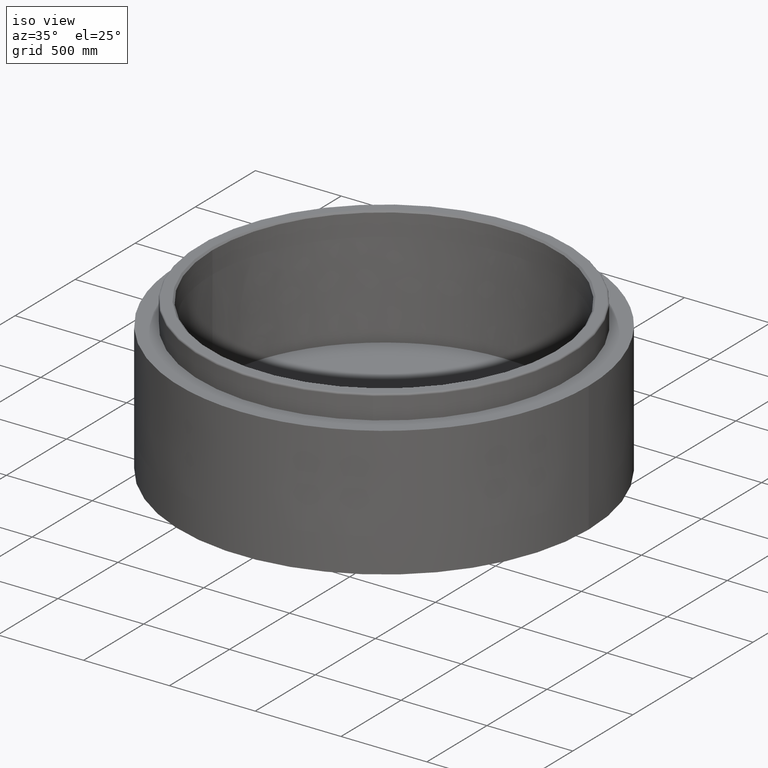
[diagram: clean part render]
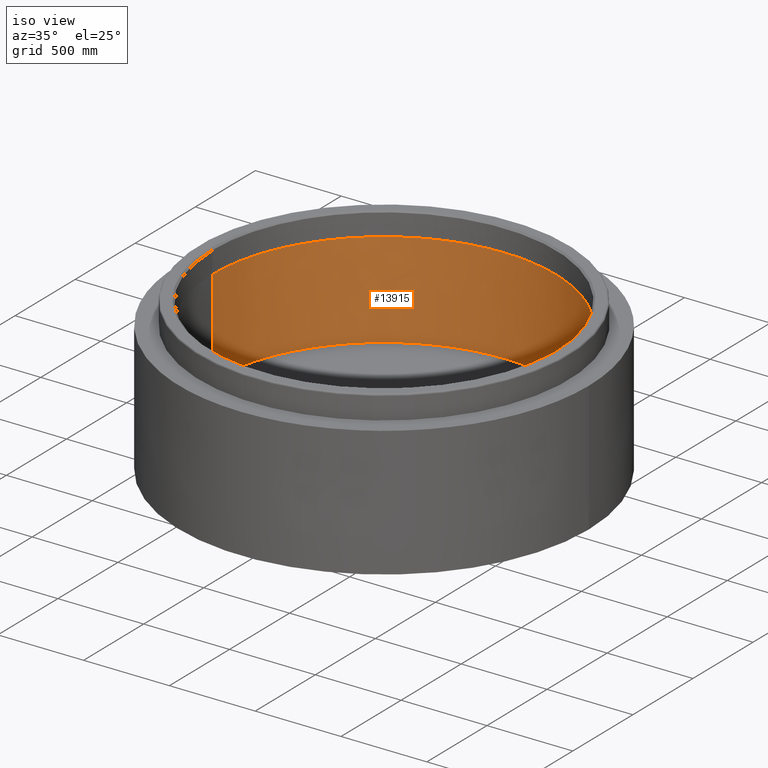
[diagram: same view with one face highlighted and labeled with its STEP entity id]
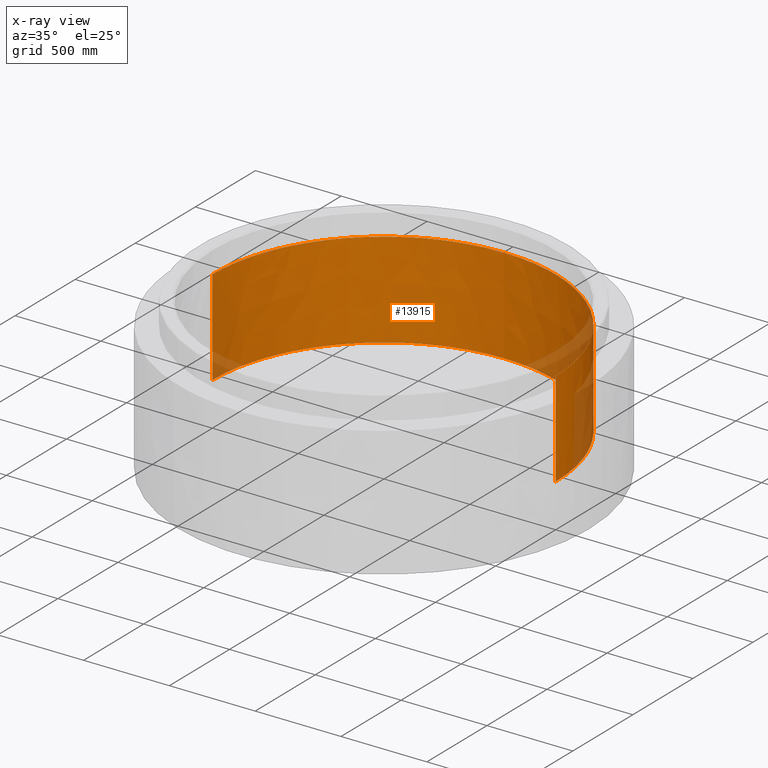
[diagram: x-ray of the same camera — body ghosted, the highlighted face saturated]
A machine part, iso view. The second image highlights one B-rep face of the part: STEP entity #13915.
The next image is the same camera in x-ray: the body ghosted, the highlighted face saturated — about 8% of this face is hidden behind the body in this view.
In plain terms, the highlighted face is a freeform B-spline surface patch.
Its self-contained STEP definition (entity closure, byte-faithful):
#67 = AXIS2_PLACEMENT_3D ( 'NONE', #11105, #19419, #21438 ) ;
#194 = AXIS2_PLACEMENT_3D ( 'NONE', #8429, #16869, #20134 ) ;
#337 = B_SPLINE_CURVE_WITH_KNOTS ( 'NONE', 3,
 ( #10201, #8392, #20204, #22109 ),
 .UNSPECIFIED., .F., .F.,
 ( 4, 4 ),
 ( 0.0000000000000000000, 1.000000000000000000 ),
 .UNSPECIFIED. ) ;
#352 = CARTESIAN_POINT ( 'NONE',  ( 1000.000000000000000, 0.0000000000000000000, 0.0000000000000000000 ) ) ;
#353 = CARTESIAN_POINT ( 'NONE',  ( 0.0000000000000000000, 0.0000000000000000000, 0.0000000000000000000 ) ) ;
#448 = DIRECTION ( 'NONE',  ( 1.000000000000000000, 0.0000000000000000000, 0.0000000000000000000 ) ) ;
#453 = CIRCLE ( 'NONE', #67, 1000.000000000000000 ) ;
#688 = DIRECTION ( 'NONE',  ( 0.0000000000000000000, 0.0000000000000000000, 1.000000000000000000 ) ) ;
#712 = ORIENTED_EDGE ( 'NONE', *, *, #3984, .T. ) ;
#764 = DIRECTION ( 'NONE',  ( 1.000000000000000000, 0.0000000000000000000, 0.0000000000000000000 ) ) ;
#826 = CARTESIAN_POINT ( 'NONE',  ( 997.1199358540546882, -79.22253806164650314, 185.6666666666667140 ) ) ;
#850 = ORIENTED_EDGE ( 'NONE', *, *, #16654, .F. ) ;
#920 = CARTESIAN_POINT ( 'NONE',  ( 0.0000000000000000000, 0.0000000000000000000, 557.0000000000000000 ) ) ;
#934 = AXIS2_PLACEMENT_3D ( 'NONE', #19990, #14412, #21271 ) ;
#1043 = CARTESIAN_POINT ( 'NONE',  ( 997.1199358540545745, -79.22253806164650314, 0.0000000000000000000 ) ) ;
#1051 = CARTESIAN_POINT ( 'NONE',  ( 0.0000000000000000000, 0.0000000000000000000, 557.0000000000000000 ) ) ;
#1151 = CARTESIAN_POINT ( 'NONE',  ( 519.5757101685526322, -894.6378522045422415, 185.6666666666667140 ) ) ;
#1171 = AXIS2_PLACEMENT_3D ( 'NONE', #9299, #9183, #764 ) ;
#1229 = DIRECTION ( 'NONE',  ( 1.000000000000000000, 0.0000000000000000000, 0.0000000000000000000 ) ) ;
#1234 = CARTESIAN_POINT ( 'NONE',  ( -281.8523488860598150, 959.4578104344046778, 557.0000000000000000 ) ) ;
#1248 = B_SPLINE_SURFACE_WITH_KNOTS ( 'NONE', 3, 3, ( 
 ( #11483, #20018, #11376, #4406 ),
 ( #2517, #11264, #9582, #4627 ),
 ( #2626, #19693, #19580, #21383 ),
 ( #16430, #16210, #826, #1043 ),
 ( #16646, #21594, #17906, #7880 ),
 ( #18231, #7663, #6199, #19908 ),
 ( #2846, #9690, #16539, #18339 ),
 ( #2955, #21273, #1151, #14525 ),
 ( #9470, #1259, #5982, #7989 ),
 ( #14849, #8096, #12724, #4296 ),
 ( #4191, #11157, #18014, #8307 ),
 ( #18443, #3495, #11795, #18766 ),
 ( #4730, #1804, #1362, #20561 ),
 ( #20449, #14954, #4834, #6842 ),
 ( #21809, #3271, #5051, #20228 ),
 ( #18880, #21912, #3055, #6516 ),
 ( #10010, #20339, #15161, #22132 ),
 ( #18659, #10225, #22023, #10341 ),
 ( #6413, #6625, #16967, #8417 ),
 ( #17086, #4945, #11584, #12012 ),
 ( #13702, #10116, #15271, #13374 ),
 ( #13481, #1575, #11691, #13270 ),
 ( #11901, #6733, #13592, #17199 ),
 ( #3379, #1689, #20122, #8529 ),
 ( #15382, #9902, #22243, #5163 ),
 ( #16752, #8199, #15054, #18552 ) ),
 .UNSPECIFIED., .T., .F., .F.,
 ( 4, 1, 1, 1, 1, 2, 2, 2, 2, 2, 2, 2, 1, 1, 1, 1, 4 ),
 ( 4, 4 ),
 ( 0.0000000000000000000, 0.006250000000000088818, 0.01249999999999995559, 0.01875000000000004441, 0.02499999999999991118, 0.1250000000000000000, 0.2500000000000000000, 0.3750000000000000000, 0.5000000000000000000, 0.6250000000000000000, 0.7500000000000000000, 0.8750000000000000000, 0.9749999999999999778, 0.9812499999999999556, 0.9875000000000000444, 0.9937500000000000222, 1.000000000000000000 ),
 ( 0.0000000000000000000, 1.000000000000000000 ),
 .UNSPECIFIED. ) ;
#1259 = CARTESIAN_POINT ( 'NONE',  ( 265.2089839999998162, -1000.000000000000455, 371.3333333333334849 ) ) ;
#1270 = CIRCLE ( 'NONE', #19573, 1000.000000000000000 ) ;
#1362 = CARTESIAN_POINT ( 'NONE',  ( -1000.000000000000455, -265.2089839999995888, 185.6666666666667140 ) ) ;
#1575 = CARTESIAN_POINT ( 'NONE',  ( 993.2210400670139734, 118.4713158489984295, 371.3333333333333144 ) ) ;
#1583 = CARTESIAN_POINT ( 'NONE',  ( 1000.000000000000000, -3.634245682171410863E-13, 371.3333333333334849 ) ) ;
#1662 = ORIENTED_EDGE ( 'NONE', *, *, #18858, .F. ) ;
#1689 = CARTESIAN_POINT ( 'NONE',  ( 999.4731892610225259, 39.72713631084230457, 371.3333333333334849 ) ) ;
#1717 = CARTESIAN_POINT ( 'NONE',  ( 959.4578104416010547, 281.8523488617672683, 556.9999999999998863 ) ) ;
#1755 = VERTEX_POINT ( 'NONE', #3566 ) ;
#1804 = CARTESIAN_POINT ( 'NONE',  ( -1000.000000000000455, -265.2089839999995888, 371.3333333333334849 ) ) ;
#1812 = DIRECTION ( 'NONE',  ( 1.000000000000000000, 0.0000000000000000000, 0.0000000000000000000 ) ) ;
#1936 = ORIENTED_EDGE ( 'NONE', *, *, #8260, .T. ) ;
#1978 = ORIENTED_EDGE ( 'NONE', *, *, #4787, .T. ) ;
#1998 = CIRCLE ( 'NONE', #11670, 1000.000000000000000 ) ;
#2051 = ORIENTED_EDGE ( 'NONE', *, *, #10908, .F. ) ;
#2121 = ORIENTED_EDGE ( 'NONE', *, *, #6961, .T. ) ;
#2329 = ORIENTED_EDGE ( 'NONE', *, *, #13750, .F. ) ;
#2437 = VERTEX_POINT ( 'NONE', #8159 ) ;
#2485 = CARTESIAN_POINT ( 'NONE',  ( 0.0000000000000000000, 0.0000000000000000000, 0.0000000000000000000 ) ) ;
#2490 = CARTESIAN_POINT ( 'NONE',  ( 0.0000000000000000000, 0.0000000000000000000, 557.0000000000000000 ) ) ;
#2517 = CARTESIAN_POINT ( 'NONE',  ( 1000.000000000000000, -13.26044920000056848, 557.0000000000000000 ) ) ;
#2626 = CARTESIAN_POINT ( 'NONE',  ( 999.4731892610226396, -39.72713631084327091, 557.0000000000000000 ) ) ;
#2636 = EDGE_LOOP ( 'NONE', ( #20487, #9699, #18365, #7806, #1662, #16357, #21153, #850, #8897, #19619, #9619, #2329, #10817, #2051, #16892, #16128, #1936, #712, #4648, #7087, #10707, #16349, #5342, #19618, #1978, #2121 ) ) ;
#2677 = DIRECTION ( 'NONE',  ( 1.000000000000000000, 0.0000000000000000000, 0.0000000000000000000 ) ) ;
#2718 = DIRECTION ( 'NONE',  ( 0.0000000000000000000, 0.0000000000000000000, 1.000000000000000000 ) ) ;
#2731 = AXIS2_PLACEMENT_3D ( 'NONE', #9709, #16558, #14866 ) ;
#2788 = CARTESIAN_POINT ( 'NONE',  ( 0.0000000000000000000, 0.0000000000000000000, 557.0000000000000000 ) ) ;
#2846 = CARTESIAN_POINT ( 'NONE',  ( 857.1316380009430986, -557.0819243721521161, 556.9999999999998863 ) ) ;
#2934 = CIRCLE ( 'NONE', #15453, 1000.000000000000000 ) ;
#2955 = CARTESIAN_POINT ( 'NONE',  ( 519.5757101685526322, -894.6378522045422415, 557.0000000000000000 ) ) ;
#3055 = CARTESIAN_POINT ( 'NONE',  ( -519.5757101685527459, 894.6378522045423551, 185.6666666666667140 ) ) ;
#3271 = CARTESIAN_POINT ( 'NONE',  ( -894.6378522045419004, 519.5757101685532007, 371.3333333333334849 ) ) ;
#3272 = DIRECTION ( 'NONE',  ( 0.0000000000000000000, 0.0000000000000000000, 1.000000000000000000 ) ) ;
#3376 = DIRECTION ( 'NONE',  ( 0.0000000000000000000, 0.0000000000000000000, 1.000000000000000000 ) ) ;
#3379 = CARTESIAN_POINT ( 'NONE',  ( 999.4731892610226396, 39.72713631084230457, 557.0000000000000000 ) ) ;
#3438 = CIRCLE ( 'NONE', #17807, 1000.000000000000000 ) ;
#3469 = CARTESIAN_POINT ( 'NONE',  ( -959.4578124397139618, 281.8523494227334822, 557.0000000000000000 ) ) ;
#3495 = CARTESIAN_POINT ( 'NONE',  ( -894.6378522045423551, -519.5757101685524049, 371.3333333333334849 ) ) ;
#3566 = CARTESIAN_POINT ( 'NONE',  ( -959.4578016754024929, 281.8523462602058771, 0.0000000000000000000 ) ) ;
#3663 = CARTESIAN_POINT ( 'NONE',  ( -707.1067811865472095, 707.1067811865477779, 557.0000000000000000 ) ) ;
#3817 = CIRCLE ( 'NONE', #2731, 1000.000000000000000 ) ;
#3984 = EDGE_CURVE ( 'NONE', #20852, #18038, #6991, .T. ) ;
#4153 = AXIS2_PLACEMENT_3D ( 'NONE', #1051, #11165, #14641 ) ;
#4191 = CARTESIAN_POINT ( 'NONE',  ( -519.5757101685534280, -894.6378522045417867, 557.0000000000000000 ) ) ;
#4271 = DIRECTION ( 'NONE',  ( 1.000000000000000000, 0.0000000000000000000, 0.0000000000000000000 ) ) ;
#4296 = CARTESIAN_POINT ( 'NONE',  ( -265.2089840000007257, -1000.000000000000000, 0.0000000000000000000 ) ) ;
#4332 = VERTEX_POINT ( 'NONE', #13774 ) ;
#4387 = EDGE_CURVE ( 'NONE', #18038, #7130, #1270, .T. ) ;
#4396 = CARTESIAN_POINT ( 'NONE',  ( 281.8523462707589715, 959.4578016722422262, 0.0000000000000000000 ) ) ;
#4406 = CARTESIAN_POINT ( 'NONE',  ( 1000.000000000000000, -3.625572064791526827E-13, 0.0000000000000000000 ) ) ;
#4496 = CIRCLE ( 'NONE', #20637, 1000.000000000000000 ) ;
#4515 = CIRCLE ( 'NONE', #7374, 1000.000000000000000 ) ;
#4569 = CARTESIAN_POINT ( 'NONE',  ( 479.1394129846663077, 877.7388240747017107, 0.0000000000000000000 ) ) ;
#4600 = DIRECTION ( 'NONE',  ( 0.0000000000000000000, 0.0000000000000000000, 1.000000000000000000 ) ) ;
#4627 = CARTESIAN_POINT ( 'NONE',  ( 1000.000000000000000, -13.26044920000056848, 0.0000000000000000000 ) ) ;
#4648 = ORIENTED_EDGE ( 'NONE', *, *, #4387, .T. ) ;
#4701 = DIRECTION ( 'NONE',  ( 0.0000000000000000000, 0.0000000000000000000, 1.000000000000000000 ) ) ;
#4730 = CARTESIAN_POINT ( 'NONE',  ( -1000.000000000000455, -265.2089839999995888, 557.0000000000000000 ) ) ;
#4787 = EDGE_CURVE ( 'NONE', #20860, #10753, #21057, .T. ) ;
#4834 = CARTESIAN_POINT ( 'NONE',  ( -1000.000000000000000, 265.2089840000004983, 185.6666666666667140 ) ) ;
#4945 = CARTESIAN_POINT ( 'NONE',  ( 857.1316380009432123, 557.0819243721520024, 371.3333333333334849 ) ) ;
#5051 = CARTESIAN_POINT ( 'NONE',  ( -894.6378522045420141, 519.5757101685532007, 185.6666666666667140 ) ) ;
#5163 = CARTESIAN_POINT ( 'NONE',  ( 1000.000000000000000, 13.26044919999960747, 0.0000000000000000000 ) ) ;
#5342 = ORIENTED_EDGE ( 'NONE', *, *, #9055, .T. ) ;
#5582 = AXIS2_PLACEMENT_3D ( 'NONE', #18311, #4600, #9980 ) ;
#5870 = DIRECTION ( 'NONE',  ( 1.000000000000000000, 0.0000000000000000000, 0.0000000000000000000 ) ) ;
#5915 = CARTESIAN_POINT ( 'NONE',  ( 0.0000000000000000000, 0.0000000000000000000, 0.0000000000000000000 ) ) ;
#5957 = AXIS2_PLACEMENT_3D ( 'NONE', #16487, #16998, #18797 ) ;
#5982 = CARTESIAN_POINT ( 'NONE',  ( 265.2089839999998162, -1000.000000000000455, 185.6666666666667140 ) ) ;
#6199 = CARTESIAN_POINT ( 'NONE',  ( 960.6581805749138994, -352.2322685044773038, 185.6666666666667140 ) ) ;
#6304 = AXIS2_PLACEMENT_3D ( 'NONE', #6940, #10328, #448 ) ;
#6413 = CARTESIAN_POINT ( 'NONE',  ( 519.5757101685532007, 894.6378522045423551, 557.0000000000000000 ) ) ;
#6437 = VERTEX_POINT ( 'NONE', #14791 ) ;
#6439 = EDGE_CURVE ( 'NONE', #6437, #20860, #4496, .T. ) ;
#6481 = DIRECTION ( 'NONE',  ( 1.000000000000000000, 0.0000000000000000000, 0.0000000000000000000 ) ) ;
#6516 = CARTESIAN_POINT ( 'NONE',  ( -519.5757101685527459, 894.6378522045425825, 0.0000000000000000000 ) ) ;
#6587 = CARTESIAN_POINT ( 'NONE',  ( 0.0000000000000000000, 0.0000000000000000000, 557.0000000000000000 ) ) ;
#6625 = CARTESIAN_POINT ( 'NONE',  ( 519.5757101685532007, 894.6378522045423551, 371.3333333333334849 ) ) ;
#6657 = CIRCLE ( 'NONE', #5582, 1000.000000000000000 ) ;
#6733 = CARTESIAN_POINT ( 'NONE',  ( 997.1199358540544608, 79.22253806164556522, 371.3333333333334849 ) ) ;
#6842 = CARTESIAN_POINT ( 'NONE',  ( -1000.000000000000000, 265.2089840000004983, 0.0000000000000000000 ) ) ;
#6940 = CARTESIAN_POINT ( 'NONE',  ( 0.0000000000000000000, 0.0000000000000000000, 0.0000000000000000000 ) ) ;
#6961 = EDGE_CURVE ( 'NONE', #10753, #21406, #1998, .T. ) ;
#6991 = CIRCLE ( 'NONE', #8465, 1000.000000000000000 ) ;
#7079 = DIRECTION ( 'NONE',  ( 0.0000000000000000000, 0.0000000000000000000, 1.000000000000000000 ) ) ;
#7087 = ORIENTED_EDGE ( 'NONE', *, *, #12079, .T. ) ;
#7130 = VERTEX_POINT ( 'NONE', #16753 ) ;
#7267 = EDGE_CURVE ( 'NONE', #20148, #14247, #14555, .T. ) ;
#7308 = EDGE_CURVE ( 'NONE', #1755, #17331, #7731, .T. ) ;
#7373 = AXIS2_PLACEMENT_3D ( 'NONE', #11047, #13345, #16618 ) ;
#7374 = AXIS2_PLACEMENT_3D ( 'NONE', #17587, #9152, #20953 ) ;
#7521 = DIRECTION ( 'NONE',  ( 1.000000000000000000, 0.0000000000000000000, 0.0000000000000000000 ) ) ;
#7525 = B_SPLINE_CURVE_WITH_KNOTS ( 'NONE', 3,
 ( #15390, #1583, #19226, #352 ),
 .UNSPECIFIED., .F., .F.,
 ( 4, 4 ),
 ( 0.0000000000000000000, 1.000000000000000000 ),
 .UNSPECIFIED. ) ;
#7526 = CARTESIAN_POINT ( 'NONE',  ( 0.0000000000000000000, 0.0000000000000000000, 0.0000000000000000000 ) ) ;
#7600 = CARTESIAN_POINT ( 'NONE',  ( -1000.000000000000000, 4.440892098500626162E-13, 557.0000000000000000 ) ) ;
#7635 = DIRECTION ( 'NONE',  ( 0.0000000000000000000, 0.0000000000000000000, 1.000000000000000000 ) ) ;
#7663 = CARTESIAN_POINT ( 'NONE',  ( 960.6581805749140131, -352.2322685044773607, 371.3333333333334849 ) ) ;
#7673 = VERTEX_POINT ( 'NONE', #1234 ) ;
#7725 = EDGE_CURVE ( 'NONE', #10850, #17331, #337, .T. ) ;
#7731 = CIRCLE ( 'NONE', #20276, 1000.000000000000000 ) ;
#7773 = DIRECTION ( 'NONE',  ( 0.0000000000000000000, 0.0000000000000000000, 1.000000000000000000 ) ) ;
#7806 = ORIENTED_EDGE ( 'NONE', *, *, #12804, .F. ) ;
#7880 = CARTESIAN_POINT ( 'NONE',  ( 993.2210400670140871, -118.4713158489988984, 0.0000000000000000000 ) ) ;
#7989 = CARTESIAN_POINT ( 'NONE',  ( 265.2089839999998162, -1000.000000000000455, 0.0000000000000000000 ) ) ;
#8074 = AXIS2_PLACEMENT_3D ( 'NONE', #13699, #3376, #10222 ) ;
#8096 = CARTESIAN_POINT ( 'NONE',  ( -265.2089840000007257, -1000.000000000000000, 371.3333333333334849 ) ) ;
#8159 = CARTESIAN_POINT ( 'NONE',  ( 707.1067811865476642, 707.1067811865476642, 0.0000000000000000000 ) ) ;
#8199 = CARTESIAN_POINT ( 'NONE',  ( 1000.000000000000000, -3.634245682171410863E-13, 371.3333333333334849 ) ) ;
#8260 = EDGE_CURVE ( 'NONE', #14247, #20852, #8432, .T. ) ;
#8295 = CARTESIAN_POINT ( 'NONE',  ( 281.8523494333110762, 959.4578124366377097, 557.0000000000000000 ) ) ;
#8307 = CARTESIAN_POINT ( 'NONE',  ( -519.5757101685534280, -894.6378522045417867, 0.0000000000000000000 ) ) ;
#8392 = CARTESIAN_POINT ( 'NONE',  ( -1000.000000000000227, 4.440892098500626162E-13, 371.3333333333334849 ) ) ;
#8417 = CARTESIAN_POINT ( 'NONE',  ( 519.5757101685532007, 894.6378522045423551, 0.0000000000000000000 ) ) ;
#8418 = DIRECTION ( 'NONE',  ( 1.000000000000000000, 0.0000000000000000000, 0.0000000000000000000 ) ) ;
#8429 = CARTESIAN_POINT ( 'NONE',  ( 0.0000000000000000000, 0.0000000000000000000, 0.0000000000000000000 ) ) ;
#8432 = CIRCLE ( 'NONE', #5957, 1000.000000000000000 ) ;
#8465 = AXIS2_PLACEMENT_3D ( 'NONE', #920, #2718, #12707 ) ;
#8529 = CARTESIAN_POINT ( 'NONE',  ( 999.4731892610226396, 39.72713631084230457, 0.0000000000000000000 ) ) ;
#8701 = CARTESIAN_POINT ( 'NONE',  ( 877.7388330090686850, 479.1394178676975457, 557.0000000000000000 ) ) ;
#8799 = AXIS2_PLACEMENT_3D ( 'NONE', #2490, #688, #4271 ) ;
#8802 = CIRCLE ( 'NONE', #15994, 1000.000000000000000 ) ;
#8894 = VERTEX_POINT ( 'NONE', #4569 ) ;
#8897 = ORIENTED_EDGE ( 'NONE', *, *, #12368, .F. ) ;
#9027 = CIRCLE ( 'NONE', #9391, 1000.000000000000000 ) ;
#9055 = EDGE_CURVE ( 'NONE', #7673, #6437, #3817, .T. ) ;
#9060 = VERTEX_POINT ( 'NONE', #9275 ) ;
#9104 = CARTESIAN_POINT ( 'NONE',  ( 1.110223024625156540E-13, 1000.000000000000000, 0.0000000000000000000 ) ) ;
#9152 = DIRECTION ( 'NONE',  ( 0.0000000000000000000, 0.0000000000000000000, 1.000000000000000000 ) ) ;
#9172 = CIRCLE ( 'NONE', #4153, 1000.000000000000000 ) ;
#9183 = DIRECTION ( 'NONE',  ( 0.0000000000000000000, 0.0000000000000000000, 1.000000000000000000 ) ) ;
#9262 = EDGE_CURVE ( 'NONE', #15896, #12720, #6657, .T. ) ;
#9275 = CARTESIAN_POINT ( 'NONE',  ( -281.8523466009128242, 959.4578026567523921, 0.0000000000000000000 ) ) ;
#9297 = CARTESIAN_POINT ( 'NONE',  ( -877.7388311878136165, 479.1394168729856915, 557.0000000000000000 ) ) ;
#9299 = CARTESIAN_POINT ( 'NONE',  ( 0.0000000000000000000, 0.0000000000000000000, 0.0000000000000000000 ) ) ;
#9383 = EDGE_CURVE ( 'NONE', #12720, #7673, #17064, .T. ) ;
#9391 = AXIS2_PLACEMENT_3D ( 'NONE', #6587, #21878, #6481 ) ;
#9464 = VERTEX_POINT ( 'NONE', #21159 ) ;
#9470 = CARTESIAN_POINT ( 'NONE',  ( 265.2089839999998162, -1000.000000000000455, 557.0000000000000000 ) ) ;
#9488 = EDGE_CURVE ( 'NONE', #10256, #10244, #3438, .T. ) ;
#9582 = CARTESIAN_POINT ( 'NONE',  ( 1000.000000000000000, -13.26044920000057203, 185.6666666666667140 ) ) ;
#9619 = ORIENTED_EDGE ( 'NONE', *, *, #17632, .F. ) ;
#9690 = CARTESIAN_POINT ( 'NONE',  ( 857.1316380009430986, -557.0819243721521161, 371.3333333333333144 ) ) ;
#9699 = ORIENTED_EDGE ( 'NONE', *, *, #7725, .T. ) ;
#9709 = CARTESIAN_POINT ( 'NONE',  ( 0.0000000000000000000, 0.0000000000000000000, 557.0000000000000000 ) ) ;
#9816 = CARTESIAN_POINT ( 'NONE',  ( 1000.000000000000000, -5.665538897647979663E-13, 557.0000000000000000 ) ) ;
#9902 = CARTESIAN_POINT ( 'NONE',  ( 1000.000000000000000, 13.26044919999960747, 371.3333333333334849 ) ) ;
#9929 = EDGE_CURVE ( 'NONE', #9060, #10256, #19943, .T. ) ;
#9980 = DIRECTION ( 'NONE',  ( 1.000000000000000000, 0.0000000000000000000, 0.0000000000000000000 ) ) ;
#10010 = CARTESIAN_POINT ( 'NONE',  ( -265.2089839999998162, 1000.000000000000227, 557.0000000000000000 ) ) ;
#10019 = DIRECTION ( 'NONE',  ( 0.0000000000000000000, 0.0000000000000000000, 1.000000000000000000 ) ) ;
#10116 = CARTESIAN_POINT ( 'NONE',  ( 960.6581805749133309, 352.2322685044769059, 371.3333333333334849 ) ) ;
#10201 = CARTESIAN_POINT ( 'NONE',  ( -1000.000000000000000, 4.440892098500626162E-13, 557.0000000000000000 ) ) ;
#10222 = DIRECTION ( 'NONE',  ( 1.000000000000000000, 0.0000000000000000000, 0.0000000000000000000 ) ) ;
#10225 = CARTESIAN_POINT ( 'NONE',  ( 265.2089840000002710, 1000.000000000000227, 371.3333333333334849 ) ) ;
#10244 = VERTEX_POINT ( 'NONE', #20588 ) ;
#10256 = VERTEX_POINT ( 'NONE', #20821 ) ;
#10328 = DIRECTION ( 'NONE',  ( 0.0000000000000000000, 0.0000000000000000000, 1.000000000000000000 ) ) ;
#10341 = CARTESIAN_POINT ( 'NONE',  ( 265.2089840000002710, 1000.000000000000227, 0.0000000000000000000 ) ) ;
#10466 = CARTESIAN_POINT ( 'NONE',  ( 1000.000000000000000, 0.0000000000000000000, 0.0000000000000000000 ) ) ;
#10707 = ORIENTED_EDGE ( 'NONE', *, *, #9262, .T. ) ;
#10753 = VERTEX_POINT ( 'NONE', #9297 ) ;
#10817 = ORIENTED_EDGE ( 'NONE', *, *, #11139, .F. ) ;
#10850 = VERTEX_POINT ( 'NONE', #7600 ) ;
#10908 = EDGE_CURVE ( 'NONE', #16465, #11292, #20638, .T. ) ;
#11047 = CARTESIAN_POINT ( 'NONE',  ( 0.0000000000000000000, 0.0000000000000000000, 557.0000000000000000 ) ) ;
#11105 = CARTESIAN_POINT ( 'NONE',  ( 0.0000000000000000000, 0.0000000000000000000, 0.0000000000000000000 ) ) ;
#11130 = DIRECTION ( 'NONE',  ( 0.0000000000000000000, 0.0000000000000000000, 1.000000000000000000 ) ) ;
#11139 = EDGE_CURVE ( 'NONE', #11292, #4332, #17067, .T. ) ;
#11157 = CARTESIAN_POINT ( 'NONE',  ( -519.5757101685534280, -894.6378522045417867, 371.3333333333334849 ) ) ;
#11165 = DIRECTION ( 'NONE',  ( 0.0000000000000000000, 0.0000000000000000000, 1.000000000000000000 ) ) ;
#11207 = DIRECTION ( 'NONE',  ( 0.0000000000000000000, 0.0000000000000000000, 1.000000000000000000 ) ) ;
#11264 = CARTESIAN_POINT ( 'NONE',  ( 1000.000000000000000, -13.26044920000057203, 371.3333333333334849 ) ) ;
#11292 = VERTEX_POINT ( 'NONE', #11913 ) ;
#11376 = CARTESIAN_POINT ( 'NONE',  ( 1000.000000000000000, -3.634245682171410863E-13, 185.6666666666667140 ) ) ;
#11403 = VERTEX_POINT ( 'NONE', #4396 ) ;
#11483 = CARTESIAN_POINT ( 'NONE',  ( 1000.000000000000000, -3.625572064791526827E-13, 557.0000000000000000 ) ) ;
#11557 = CIRCLE ( 'NONE', #1171, 1000.000000000000000 ) ;
#11584 = CARTESIAN_POINT ( 'NONE',  ( 857.1316380009432123, 557.0819243721520024, 185.6666666666667140 ) ) ;
#11670 = AXIS2_PLACEMENT_3D ( 'NONE', #18661, #3272, #8418 ) ;
#11673 = AXIS2_PLACEMENT_3D ( 'NONE', #353, #7079, #1812 ) ;
#11691 = CARTESIAN_POINT ( 'NONE',  ( 993.2210400670139734, 118.4713158489984295, 185.6666666666666572 ) ) ;
#11795 = CARTESIAN_POINT ( 'NONE',  ( -894.6378522045423551, -519.5757101685524049, 185.6666666666667140 ) ) ;
#11901 = CARTESIAN_POINT ( 'NONE',  ( 997.1199358540544608, 79.22253806164556522, 557.0000000000000000 ) ) ;
#11913 = CARTESIAN_POINT ( 'NONE',  ( 959.4578026637536823, 281.8523465769506515, 0.0000000000000000000 ) ) ;
#12012 = CARTESIAN_POINT ( 'NONE',  ( 857.1316380009433260, 557.0819243721520024, 0.0000000000000000000 ) ) ;
#12025 = DIRECTION ( 'NONE',  ( 1.000000000000000000, 0.0000000000000000000, 0.0000000000000000000 ) ) ;
#12079 = EDGE_CURVE ( 'NONE', #7130, #15896, #9172, .T. ) ;
#12368 = EDGE_CURVE ( 'NONE', #11403, #18964, #13124, .T. ) ;
#12707 = DIRECTION ( 'NONE',  ( 1.000000000000000000, 0.0000000000000000000, 0.0000000000000000000 ) ) ;
#12720 = VERTEX_POINT ( 'NONE', #17530 ) ;
#12724 = CARTESIAN_POINT ( 'NONE',  ( -265.2089840000007257, -1000.000000000000000, 185.6666666666667140 ) ) ;
#12804 = EDGE_CURVE ( 'NONE', #9464, #1755, #15252, .T. ) ;
#12941 = FACE_OUTER_BOUND ( 'NONE', #2636, .T. ) ;
#13053 = CARTESIAN_POINT ( 'NONE',  ( 0.0000000000000000000, 0.0000000000000000000, 0.0000000000000000000 ) ) ;
#13124 = CIRCLE ( 'NONE', #11673, 1000.000000000000000 ) ;
#13270 = CARTESIAN_POINT ( 'NONE',  ( 993.2210400670139734, 118.4713158489984153, 0.0000000000000000000 ) ) ;
#13345 = DIRECTION ( 'NONE',  ( 0.0000000000000000000, 0.0000000000000000000, 1.000000000000000000 ) ) ;
#13374 = CARTESIAN_POINT ( 'NONE',  ( 960.6581805749135583, 352.2322685044768491, 0.0000000000000000000 ) ) ;
#13481 = CARTESIAN_POINT ( 'NONE',  ( 993.2210400670139734, 118.4713158489984153, 556.9999999999998863 ) ) ;
#13592 = CARTESIAN_POINT ( 'NONE',  ( 997.1199358540544608, 79.22253806164556522, 185.6666666666667140 ) ) ;
#13699 = CARTESIAN_POINT ( 'NONE',  ( 0.0000000000000000000, 0.0000000000000000000, 557.0000000000000000 ) ) ;
#13702 = CARTESIAN_POINT ( 'NONE',  ( 960.6581805749135583, 352.2322685044768491, 557.0000000000000000 ) ) ;
#13750 = EDGE_CURVE ( 'NONE', #4332, #2437, #8802, .T. ) ;
#13774 = CARTESIAN_POINT ( 'NONE',  ( 877.7388231612242180, 479.1394124923798472, 0.0000000000000000000 ) ) ;
#13822 = AXIS2_PLACEMENT_3D ( 'NONE', #5915, #10019, #12025 ) ;
#13915 = ADVANCED_FACE ( 'NONE', ( #12941 ), #1248, .F. ) ;
#14247 = VERTEX_POINT ( 'NONE', #1717 ) ;
#14387 = DIRECTION ( 'NONE',  ( 1.000000000000000000, 0.0000000000000000000, 0.0000000000000000000 ) ) ;
#14412 = DIRECTION ( 'NONE',  ( 0.0000000000000000000, 0.0000000000000000000, 1.000000000000000000 ) ) ;
#14525 = CARTESIAN_POINT ( 'NONE',  ( 519.5757101685526322, -894.6378522045422415, 0.0000000000000000000 ) ) ;
#14555 = CIRCLE ( 'NONE', #8799, 1000.000000000000000 ) ;
#14641 = DIRECTION ( 'NONE',  ( 1.000000000000000000, 0.0000000000000000000, 0.0000000000000000000 ) ) ;
#14791 = CARTESIAN_POINT ( 'NONE',  ( -479.1394178595961080, 877.7388330135169099, 557.0000000000000000 ) ) ;
#14849 = CARTESIAN_POINT ( 'NONE',  ( -265.2089840000007257, -1000.000000000000000, 557.0000000000000000 ) ) ;
#14866 = DIRECTION ( 'NONE',  ( 1.000000000000000000, 0.0000000000000000000, 0.0000000000000000000 ) ) ;
#14954 = CARTESIAN_POINT ( 'NONE',  ( -1000.000000000000000, 265.2089840000004983, 371.3333333333334849 ) ) ;
#14993 = EDGE_CURVE ( 'NONE', #8894, #11403, #4515, .T. ) ;
#15054 = CARTESIAN_POINT ( 'NONE',  ( 1000.000000000000000, -3.634245682171410863E-13, 185.6666666666667140 ) ) ;
#15161 = CARTESIAN_POINT ( 'NONE',  ( -265.2089839999998162, 1000.000000000000455, 185.6666666666667140 ) ) ;
#15252 = CIRCLE ( 'NONE', #6304, 1000.000000000000000 ) ;
#15271 = CARTESIAN_POINT ( 'NONE',  ( 960.6581805749134446, 352.2322685044769059, 185.6666666666667140 ) ) ;
#15382 = CARTESIAN_POINT ( 'NONE',  ( 1000.000000000000000, 13.26044919999960747, 557.0000000000000000 ) ) ;
#15390 = CARTESIAN_POINT ( 'NONE',  ( 1000.000000000000000, -5.665538897647979663E-13, 557.0000000000000000 ) ) ;
#15453 = AXIS2_PLACEMENT_3D ( 'NONE', #2485, #7635, #7521 ) ;
#15896 = VERTEX_POINT ( 'NONE', #8295 ) ;
#15994 = AXIS2_PLACEMENT_3D ( 'NONE', #13053, #7773, #5870 ) ;
#16128 = ORIENTED_EDGE ( 'NONE', *, *, #7267, .T. ) ;
#16210 = CARTESIAN_POINT ( 'NONE',  ( 997.1199358540546882, -79.22253806164650314, 371.3333333333334849 ) ) ;
#16349 = ORIENTED_EDGE ( 'NONE', *, *, #9383, .T. ) ;
#16357 = ORIENTED_EDGE ( 'NONE', *, *, #9488, .F. ) ;
#16430 = CARTESIAN_POINT ( 'NONE',  ( 997.1199358540545745, -79.22253806164650314, 557.0000000000000000 ) ) ;
#16465 = VERTEX_POINT ( 'NONE', #10466 ) ;
#16487 = CARTESIAN_POINT ( 'NONE',  ( 0.0000000000000000000, 0.0000000000000000000, 557.0000000000000000 ) ) ;
#16539 = CARTESIAN_POINT ( 'NONE',  ( 857.1316380009430986, -557.0819243721521161, 185.6666666666666572 ) ) ;
#16558 = DIRECTION ( 'NONE',  ( 0.0000000000000000000, 0.0000000000000000000, 1.000000000000000000 ) ) ;
#16618 = DIRECTION ( 'NONE',  ( 1.000000000000000000, 0.0000000000000000000, 0.0000000000000000000 ) ) ;
#16646 = CARTESIAN_POINT ( 'NONE',  ( 993.2210400670140871, -118.4713158489988984, 556.9999999999998863 ) ) ;
#16654 = EDGE_CURVE ( 'NONE', #18964, #9060, #11557, .T. ) ;
#16752 = CARTESIAN_POINT ( 'NONE',  ( 1000.000000000000000, -3.625572064791526827E-13, 557.0000000000000000 ) ) ;
#16753 = CARTESIAN_POINT ( 'NONE',  ( 479.1394168684765873, 877.7388311902170699, 557.0000000000000000 ) ) ;
#16771 = EDGE_CURVE ( 'NONE', #20148, #16465, #7525, .T. ) ;
#16869 = DIRECTION ( 'NONE',  ( 0.0000000000000000000, 0.0000000000000000000, 1.000000000000000000 ) ) ;
#16892 = ORIENTED_EDGE ( 'NONE', *, *, #16771, .F. ) ;
#16967 = CARTESIAN_POINT ( 'NONE',  ( 519.5757101685532007, 894.6378522045423551, 185.6666666666667140 ) ) ;
#16998 = DIRECTION ( 'NONE',  ( 0.0000000000000000000, 0.0000000000000000000, 1.000000000000000000 ) ) ;
#17064 = CIRCLE ( 'NONE', #7373, 1000.000000000000000 ) ;
#17067 = CIRCLE ( 'NONE', #194, 1000.000000000000000 ) ;
#17086 = CARTESIAN_POINT ( 'NONE',  ( 857.1316380009433260, 557.0819243721520024, 557.0000000000000000 ) ) ;
#17199 = CARTESIAN_POINT ( 'NONE',  ( 997.1199358540544608, 79.22253806164556522, 0.0000000000000000000 ) ) ;
#17331 = VERTEX_POINT ( 'NONE', #21332 ) ;
#17530 = CARTESIAN_POINT ( 'NONE',  ( 3.828568698926949411E-13, 1000.000000000000000, 557.0000000000000000 ) ) ;
#17587 = CARTESIAN_POINT ( 'NONE',  ( 0.0000000000000000000, 0.0000000000000000000, 0.0000000000000000000 ) ) ;
#17632 = EDGE_CURVE ( 'NONE', #2437, #8894, #453, .T. ) ;
#17807 = AXIS2_PLACEMENT_3D ( 'NONE', #19468, #4701, #1229 ) ;
#17854 = DIRECTION ( 'NONE',  ( 1.000000000000000000, 0.0000000000000000000, 0.0000000000000000000 ) ) ;
#17906 = CARTESIAN_POINT ( 'NONE',  ( 993.2210400670142008, -118.4713158489988984, 185.6666666666666572 ) ) ;
#17959 = DIRECTION ( 'NONE',  ( 0.0000000000000000000, 0.0000000000000000000, 1.000000000000000000 ) ) ;
#18014 = CARTESIAN_POINT ( 'NONE',  ( -519.5757101685534280, -894.6378522045417867, 185.6666666666667140 ) ) ;
#18038 = VERTEX_POINT ( 'NONE', #19938 ) ;
#18231 = CARTESIAN_POINT ( 'NONE',  ( 960.6581805749137857, -352.2322685044772470, 557.0000000000000000 ) ) ;
#18311 = CARTESIAN_POINT ( 'NONE',  ( 0.0000000000000000000, 0.0000000000000000000, 557.0000000000000000 ) ) ;
#18339 = CARTESIAN_POINT ( 'NONE',  ( 857.1316380009430986, -557.0819243721521161, 0.0000000000000000000 ) ) ;
#18365 = ORIENTED_EDGE ( 'NONE', *, *, #7308, .F. ) ;
#18443 = CARTESIAN_POINT ( 'NONE',  ( -894.6378522045423551, -519.5757101685524049, 557.0000000000000000 ) ) ;
#18552 = CARTESIAN_POINT ( 'NONE',  ( 1000.000000000000000, -3.625572064791526827E-13, 0.0000000000000000000 ) ) ;
#18659 = CARTESIAN_POINT ( 'NONE',  ( 265.2089840000002710, 1000.000000000000227, 557.0000000000000000 ) ) ;
#18661 = CARTESIAN_POINT ( 'NONE',  ( 0.0000000000000000000, 0.0000000000000000000, 557.0000000000000000 ) ) ;
#18766 = CARTESIAN_POINT ( 'NONE',  ( -894.6378522045423551, -519.5757101685524049, 0.0000000000000000000 ) ) ;
#18797 = DIRECTION ( 'NONE',  ( 1.000000000000000000, 0.0000000000000000000, 0.0000000000000000000 ) ) ;
#18858 = EDGE_CURVE ( 'NONE', #10244, #9464, #2934, .T. ) ;
#18880 = CARTESIAN_POINT ( 'NONE',  ( -519.5757101685527459, 894.6378522045425825, 557.0000000000000000 ) ) ;
#18964 = VERTEX_POINT ( 'NONE', #9104 ) ;
#19226 = CARTESIAN_POINT ( 'NONE',  ( 1000.000000000000000, -3.634245682171410863E-13, 185.6666666666667140 ) ) ;
#19419 = DIRECTION ( 'NONE',  ( 0.0000000000000000000, 0.0000000000000000000, 1.000000000000000000 ) ) ;
#19468 = CARTESIAN_POINT ( 'NONE',  ( 0.0000000000000000000, 0.0000000000000000000, 0.0000000000000000000 ) ) ;
#19573 = AXIS2_PLACEMENT_3D ( 'NONE', #20629, #17959, #17854 ) ;
#19580 = CARTESIAN_POINT ( 'NONE',  ( 999.4731892610226396, -39.72713631084327091, 185.6666666666667140 ) ) ;
#19618 = ORIENTED_EDGE ( 'NONE', *, *, #6439, .T. ) ;
#19619 = ORIENTED_EDGE ( 'NONE', *, *, #14993, .F. ) ;
#19693 = CARTESIAN_POINT ( 'NONE',  ( 999.4731892610225259, -39.72713631084327091, 371.3333333333334849 ) ) ;
#19908 = CARTESIAN_POINT ( 'NONE',  ( 960.6581805749137857, -352.2322685044772470, 0.0000000000000000000 ) ) ;
#19938 = CARTESIAN_POINT ( 'NONE',  ( 707.1067811865477779, 707.1067811865472095, 557.0000000000000000 ) ) ;
#19943 = CIRCLE ( 'NONE', #934, 1000.000000000000000 ) ;
#19955 = EDGE_CURVE ( 'NONE', #21406, #10850, #9027, .T. ) ;
#19990 = CARTESIAN_POINT ( 'NONE',  ( 0.0000000000000000000, 0.0000000000000000000, 0.0000000000000000000 ) ) ;
#20018 = CARTESIAN_POINT ( 'NONE',  ( 1000.000000000000000, -3.634245682171410863E-13, 371.3333333333334849 ) ) ;
#20122 = CARTESIAN_POINT ( 'NONE',  ( 999.4731892610226396, 39.72713631084230457, 185.6666666666667140 ) ) ;
#20134 = DIRECTION ( 'NONE',  ( 1.000000000000000000, 0.0000000000000000000, 0.0000000000000000000 ) ) ;
#20148 = VERTEX_POINT ( 'NONE', #9816 ) ;
#20204 = CARTESIAN_POINT ( 'NONE',  ( -1000.000000000000227, 4.440892098500626162E-13, 185.6666666666667140 ) ) ;
#20228 = CARTESIAN_POINT ( 'NONE',  ( -894.6378522045419004, 519.5757101685532007, 0.0000000000000000000 ) ) ;
#20276 = AXIS2_PLACEMENT_3D ( 'NONE', #7526, #11130, #14387 ) ;
#20339 = CARTESIAN_POINT ( 'NONE',  ( -265.2089839999998162, 1000.000000000000227, 371.3333333333334849 ) ) ;
#20449 = CARTESIAN_POINT ( 'NONE',  ( -1000.000000000000000, 265.2089840000004983, 557.0000000000000000 ) ) ;
#20487 = ORIENTED_EDGE ( 'NONE', *, *, #19955, .T. ) ;
#20561 = CARTESIAN_POINT ( 'NONE',  ( -1000.000000000000455, -265.2089839999995888, 0.0000000000000000000 ) ) ;
#20588 = CARTESIAN_POINT ( 'NONE',  ( -707.1067811865474368, 707.1067811865476642, 0.0000000000000000000 ) ) ;
#20629 = CARTESIAN_POINT ( 'NONE',  ( 0.0000000000000000000, 0.0000000000000000000, 557.0000000000000000 ) ) ;
#20637 = AXIS2_PLACEMENT_3D ( 'NONE', #2788, #11207, #2677 ) ;
#20638 = CIRCLE ( 'NONE', #13822, 1000.000000000000000 ) ;
#20821 = CARTESIAN_POINT ( 'NONE',  ( -479.1394124842601627, 877.7388231656404969, 0.0000000000000000000 ) ) ;
#20852 = VERTEX_POINT ( 'NONE', #8701 ) ;
#20860 = VERTEX_POINT ( 'NONE', #3663 ) ;
#20953 = DIRECTION ( 'NONE',  ( 1.000000000000000000, 0.0000000000000000000, 0.0000000000000000000 ) ) ;
#21057 = CIRCLE ( 'NONE', #8074, 1000.000000000000000 ) ;
#21153 = ORIENTED_EDGE ( 'NONE', *, *, #9929, .F. ) ;
#21159 = CARTESIAN_POINT ( 'NONE',  ( -877.7388240722536921, 479.1394129891508555, 0.0000000000000000000 ) ) ;
#21271 = DIRECTION ( 'NONE',  ( 1.000000000000000000, 0.0000000000000000000, 0.0000000000000000000 ) ) ;
#21273 = CARTESIAN_POINT ( 'NONE',  ( 519.5757101685526322, -894.6378522045422415, 371.3333333333334849 ) ) ;
#21332 = CARTESIAN_POINT ( 'NONE',  ( -1000.000000000000000, 2.832769448823989831E-13, 0.0000000000000000000 ) ) ;
#21383 = CARTESIAN_POINT ( 'NONE',  ( 999.4731892610226396, -39.72713631084327091, 0.0000000000000000000 ) ) ;
#21406 = VERTEX_POINT ( 'NONE', #3469 ) ;
#21438 = DIRECTION ( 'NONE',  ( 1.000000000000000000, 0.0000000000000000000, 0.0000000000000000000 ) ) ;
#21594 = CARTESIAN_POINT ( 'NONE',  ( 993.2210400670142008, -118.4713158489988984, 371.3333333333333144 ) ) ;
#21809 = CARTESIAN_POINT ( 'NONE',  ( -894.6378522045419004, 519.5757101685532007, 557.0000000000000000 ) ) ;
#21878 = DIRECTION ( 'NONE',  ( 0.0000000000000000000, 0.0000000000000000000, 1.000000000000000000 ) ) ;
#21912 = CARTESIAN_POINT ( 'NONE',  ( -519.5757101685527459, 894.6378522045424688, 371.3333333333334849 ) ) ;
#22023 = CARTESIAN_POINT ( 'NONE',  ( 265.2089840000002710, 1000.000000000000455, 185.6666666666667140 ) ) ;
#22109 = CARTESIAN_POINT ( 'NONE',  ( -1000.000000000000000, 2.832769448823989831E-13, 0.0000000000000000000 ) ) ;
#22132 = CARTESIAN_POINT ( 'NONE',  ( -265.2089839999998162, 1000.000000000000227, 0.0000000000000000000 ) ) ;
#22243 = CARTESIAN_POINT ( 'NONE',  ( 1000.000000000000000, 13.26044919999960747, 185.6666666666667140 ) ) ;